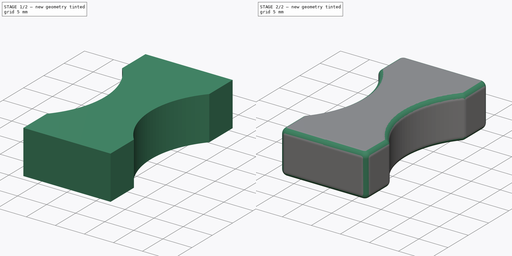
[diagram: build sequence overview — one tinted view per stage of 2, left to right]
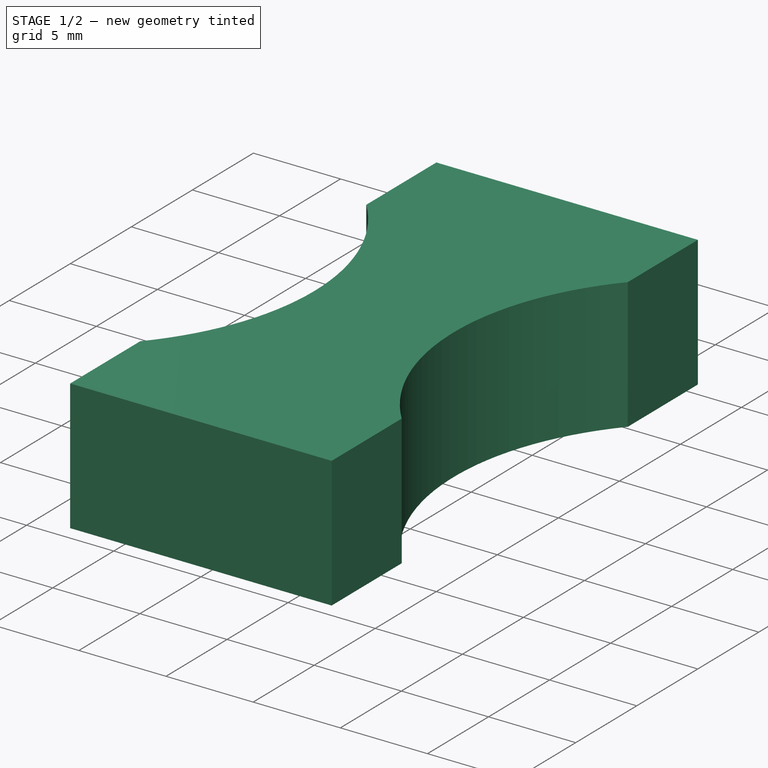
[diagram: stage 1 of 2 — iso view after this stage's code; geometry added in this stage tinted green]
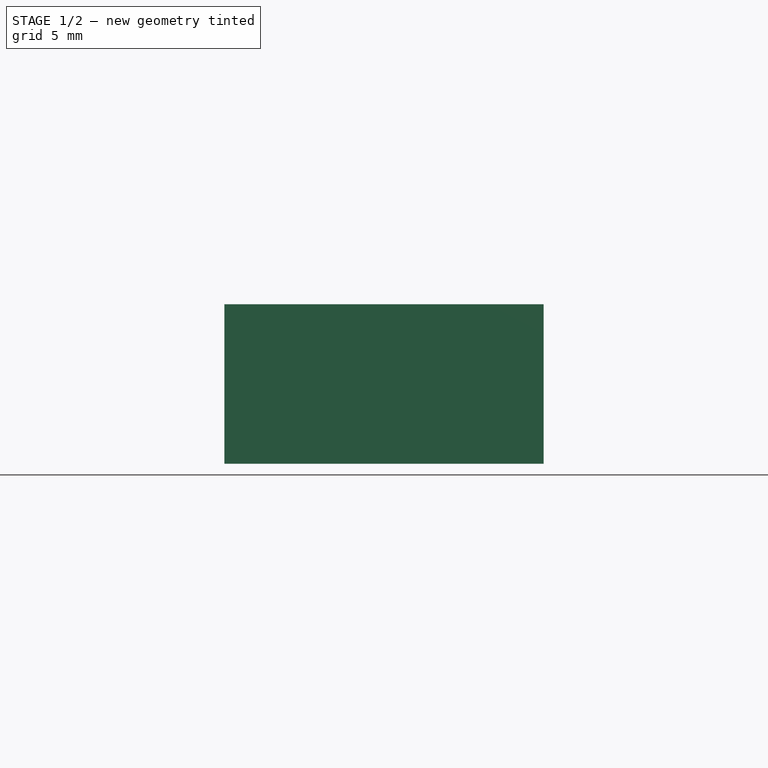
[diagram: stage 1 of 2 — front view after this stage's code; geometry added in this stage tinted green]
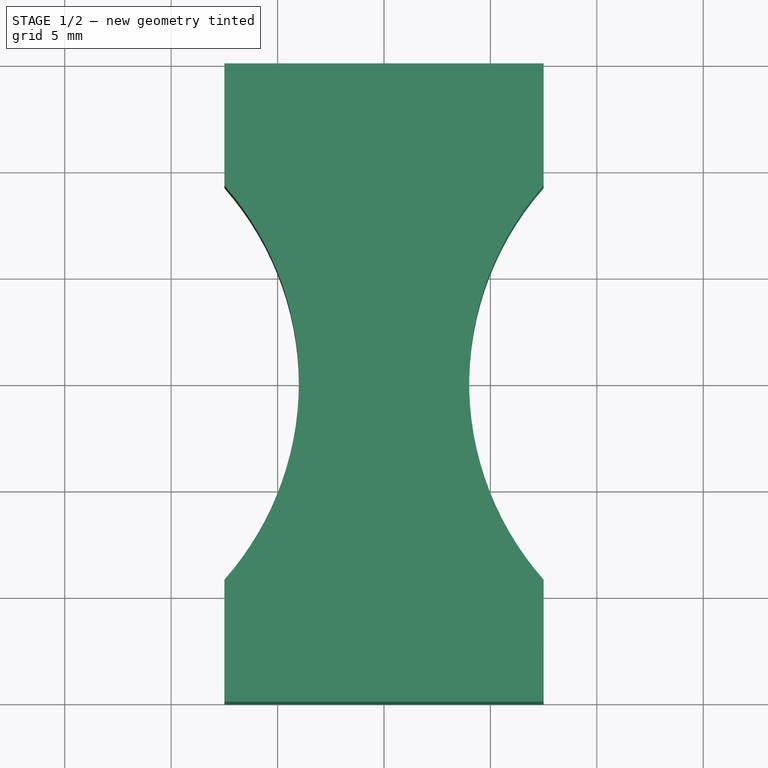
[diagram: stage 1 of 2 — top view after this stage's code; geometry added in this stage tinted green]
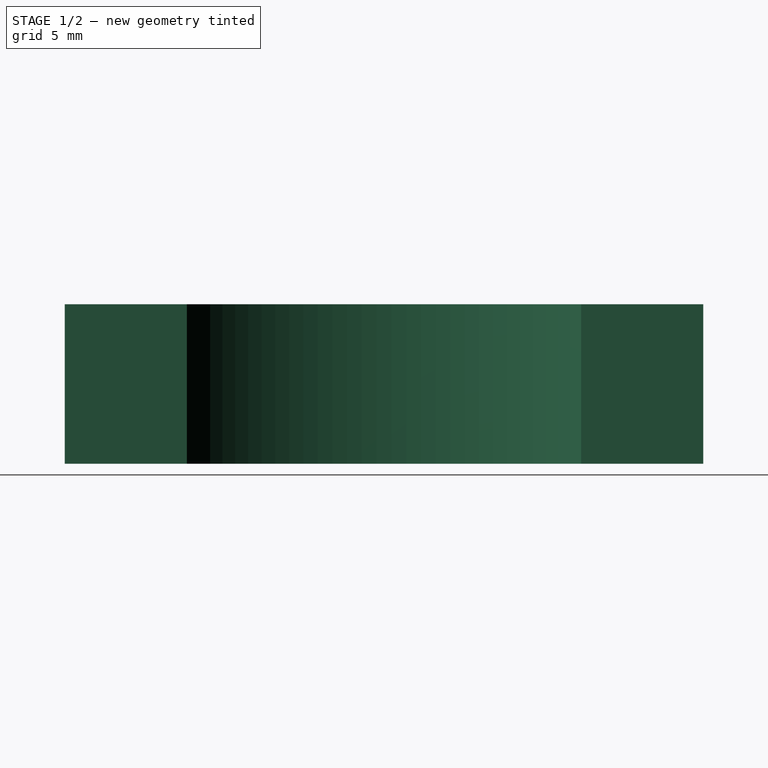
[diagram: stage 1 of 2 — right view after this stage's code; geometry added in this stage tinted green]
FCSTD DOCUMENT  (FreeCAD 0.19R)
Label: chassis
License: All rights reserved
LicenseURL: http://en.wikipedia.org/wiki/All_rights_reserved
objects: Sketcher::SketchObject×2, PartDesign::Pad×1, PartDesign::Pocket×1, PartDesign::Fillet×1, PartDesign::Body×1
note: 9 computed .brp shape members not serialized (recipe doc carries the construction recipe); baked Part::Feature solids carry a one-line shape summary decoded from their .brp

FEATURE [Sketcher::SketchObject] Sketch
  FullyConstrained = true
  MapMode = 5
  Support = -> [XY_Plane]
  sketch-geometry (8):
    g0: LineSegment StartX=0 StartY=15 StartZ=0 EndX=-7.5 EndY=15 EndZ=0
    g1: LineSegment StartX=-7.5 StartY=15 StartZ=0 EndX=-7.5 EndY=0 EndZ=0
    g2: LineSegment StartX=-7.5 StartY=0 StartZ=0 EndX=-7.5 EndY=-15 EndZ=0
    g3: LineSegment StartX=-7.5 StartY=-15 StartZ=0 EndX=0 EndY=-15 EndZ=0
    g4: LineSegment StartX=0 StartY=-15 StartZ=0 EndX=7.5 EndY=-15 EndZ=0
    g5: LineSegment StartX=7.5 StartY=-15 StartZ=0 EndX=7.5 EndY=0 EndZ=0
    g6: LineSegment StartX=7.5 StartY=0 StartZ=0 EndX=7.5 EndY=15 EndZ=0
    g7: LineSegment StartX=7.5 StartY=15 StartZ=0 EndX=0 EndY=15 EndZ=0
  constraints (24):
    c: PointOnObject(g0,g-2)
    c: Coincident(g1,g0)
    c: PointOnObject(g1,g-1)
    c: Vertical(g1)
    c: Coincident(g2,g1)
    c: Coincident(g3,g2)
    c: PointOnObject(g3,g-2)
    c: Coincident(g4,g3)
    c: Coincident(g5,g4)
    c: PointOnObject(g5,g-1)
    c: Coincident(g6,g5)
    c: Horizontal(g0)
    c: Horizontal(g4)
    c: Horizontal(g3)
    c: Vertical(g6)
    c: Vertical(g5)
    c: Vertical(g2)
    c: Coincident(g7,g6)
    c: Coincident(g7,g0)
    c: Horizontal(g7)
    c: Distance(g0,g6) = 7.5
    c: Distance(g0,g0) = 7.5
    c: Distance(g6) = 15
    c: Distance(g5) = 15
FEATURE [PartDesign::Pad] Pad
  Direction = (1,1,1)
  Length = 7.5
  Length2 = 100
  Profile = -> Sketch
  Type = 0
FEATURE [Sketcher::SketchObject] Sketch001
  FullyConstrained = true
  MapMode = 5
  Placement = pos=(0,0,0) rot=(1,0,0;3.14159rad)
  sketch-geometry (2):
    g0: Circle CenterX=18 CenterY=0 CenterZ=0 NormalX=0 NormalY=0 NormalZ=1 AngleXU=0 Radius=14
    g1: Circle CenterX=-18 CenterY=0 CenterZ=0 NormalX=0 NormalY=0 NormalZ=1 AngleXU=0 Radius=14
  constraints (6):
    c: PointOnObject(g0,g-1)
    c: Radius(g0) = 14
    c: Distance(g0,g-1) = 18
    c: PointOnObject(g1,g-1)
    c: Radius(g1) = 14
    c: Distance(g1,g-1) = 18
FEATURE [PartDesign::Pocket] Pocket
  BaseFeature = -> Pad
  Length = 5
  Length2 = 100
  Profile = -> Sketch001
  Type = 1
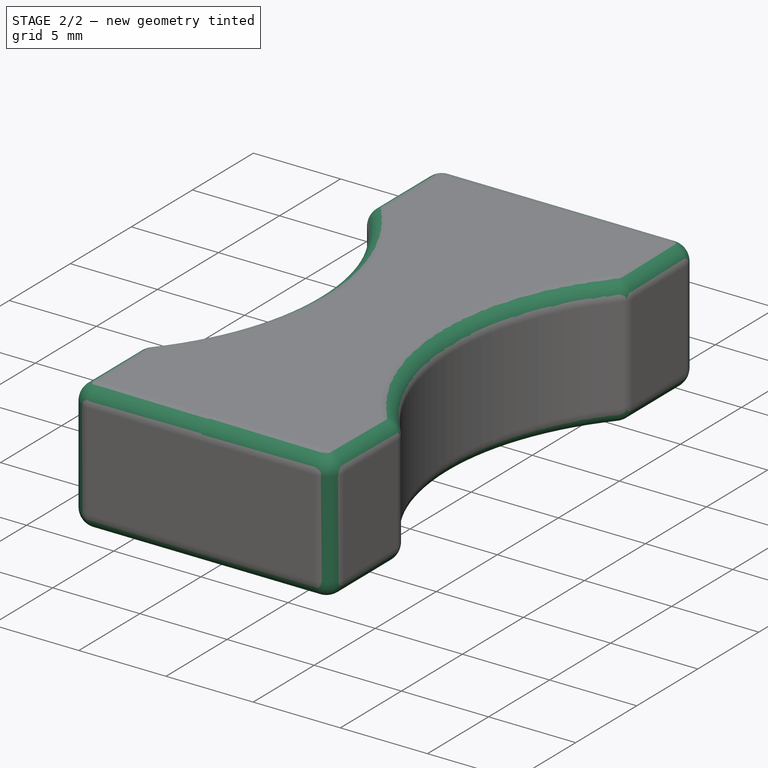
[diagram: stage 2 of 2 — iso view after this stage's code; geometry added in this stage tinted green]
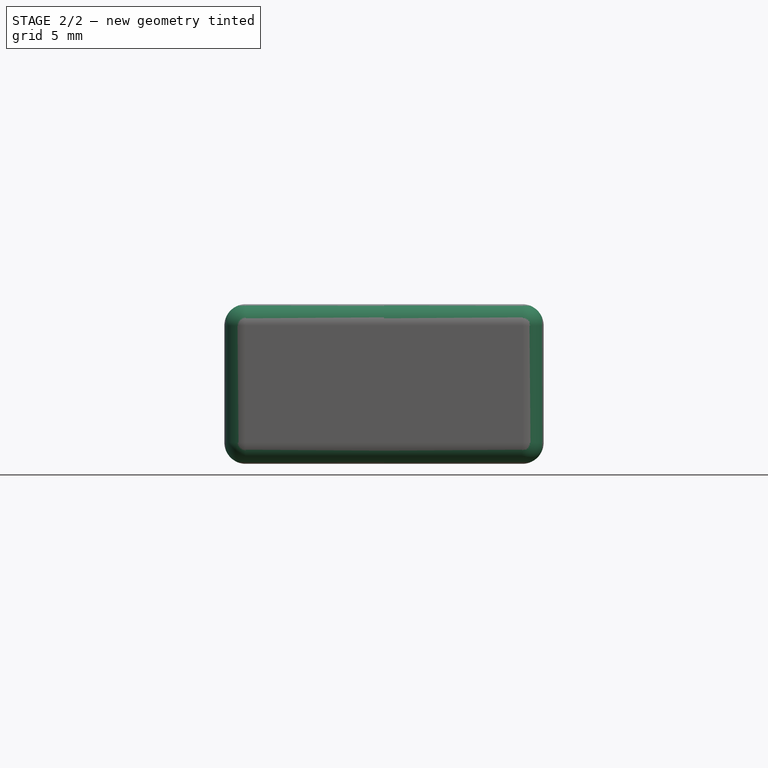
[diagram: stage 2 of 2 — front view after this stage's code; geometry added in this stage tinted green]
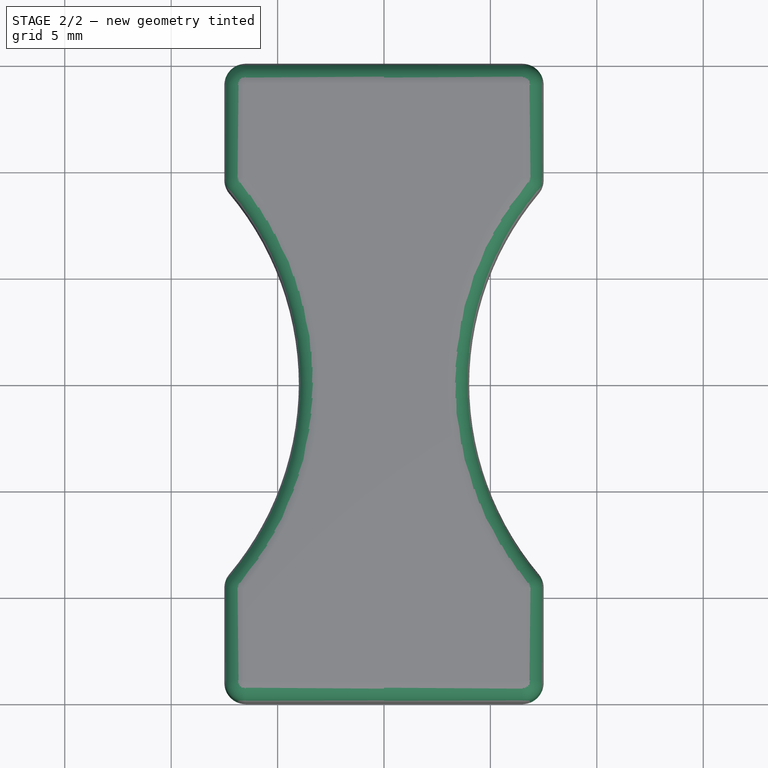
[diagram: stage 2 of 2 — top view after this stage's code; geometry added in this stage tinted green]
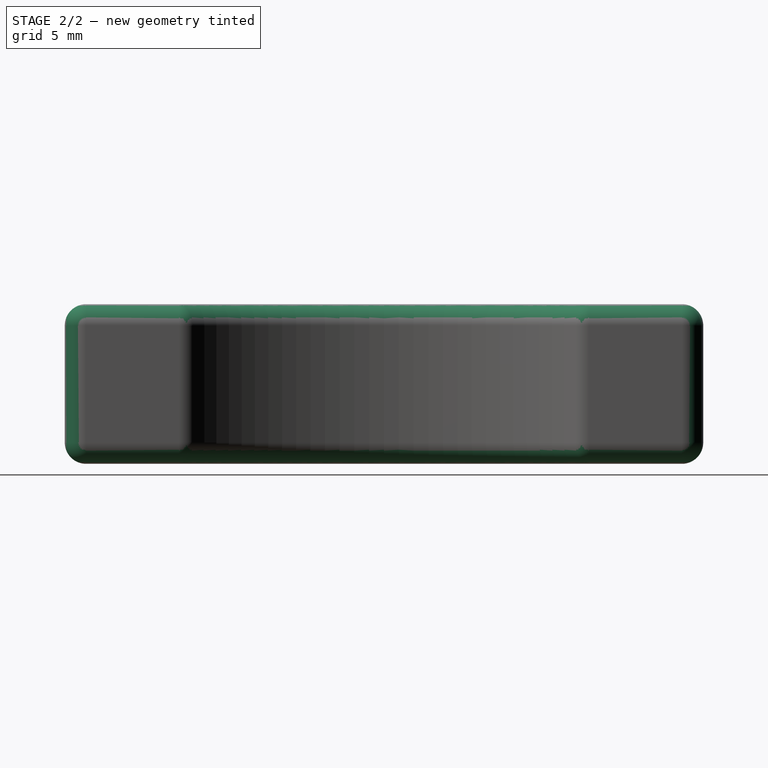
[diagram: stage 2 of 2 — right view after this stage's code; geometry added in this stage tinted green]
FEATURE [PartDesign::Fillet] Fillet
  Base = -> Pocket [Edge24,Edge23,Edge22,Edge21,Edge16,Edge32,Edge33,Edge25,Edge26,Edge18,Edge17,Edge9,Edge8,Edge10,Edge2,Edge4,Edge7,Edge19,Edge20,Edge30,Edge13,Edge12,Edge11,Edge27,Edge29,Edge5,Edge3,Edge6,Edge15,Edge14]
  BaseFeature = -> Pocket
  Radius = 1
  SupportTransform = false
FEATURE [PartDesign::Body] Body
  Group = -> [Sketch,Pad,Sketch001,Pocket,Fillet]
  Origin = -> Origin
  Tip = -> Fillet
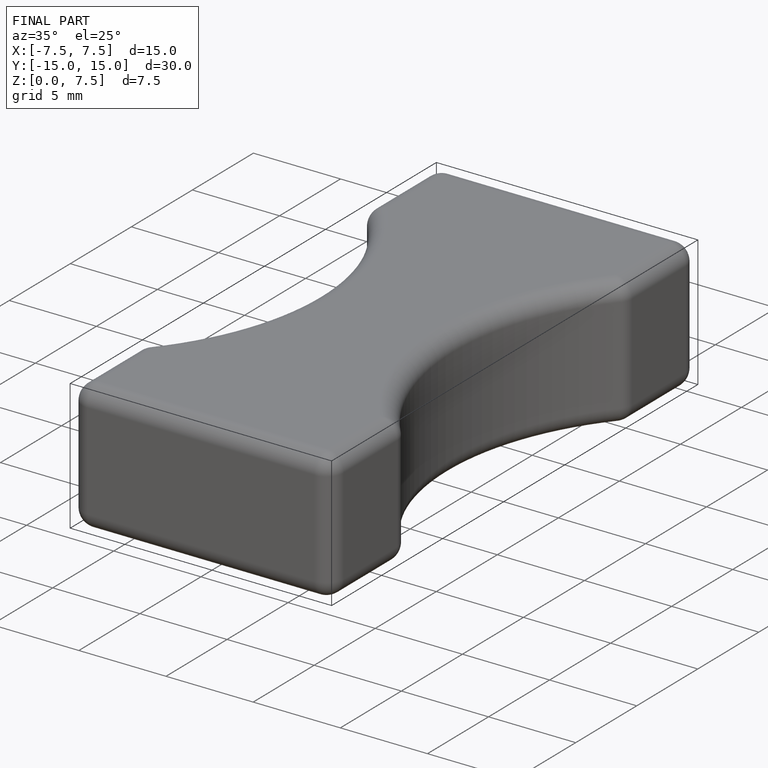
[diagram: finished part — iso view with bounding-box wireframe]
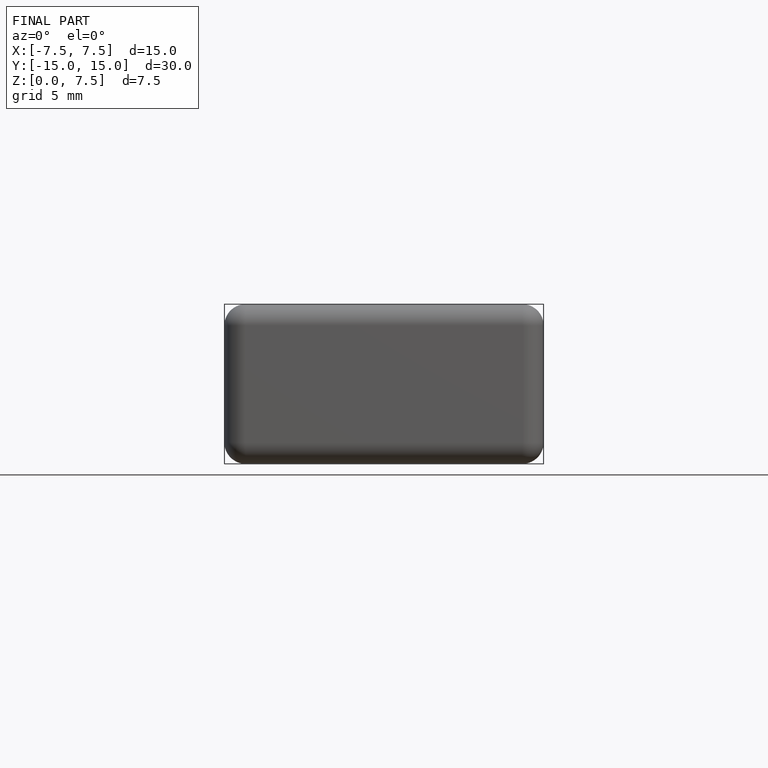
[diagram: finished part — front view with bounding-box wireframe]
